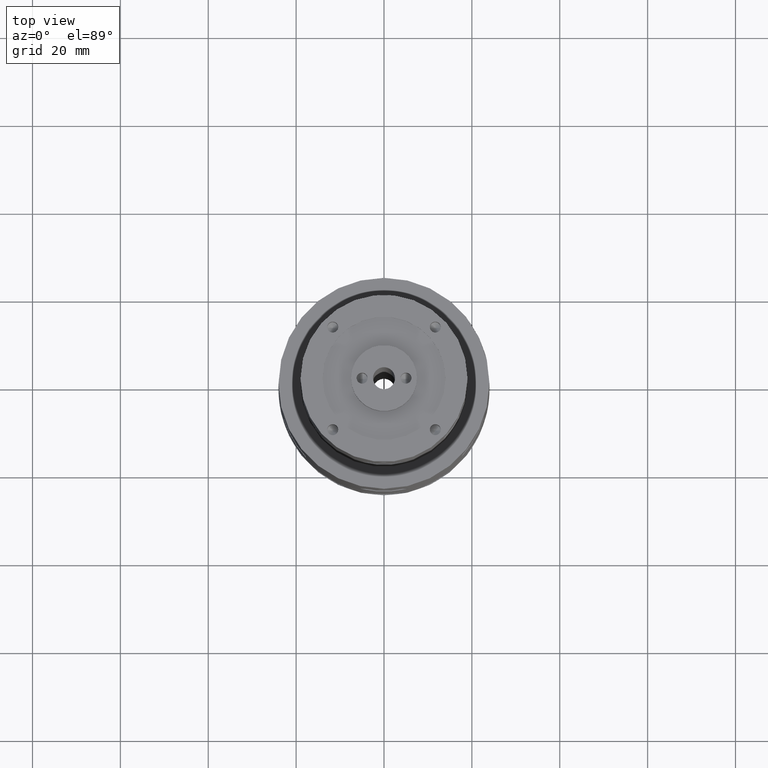
[diagram: clean part render]
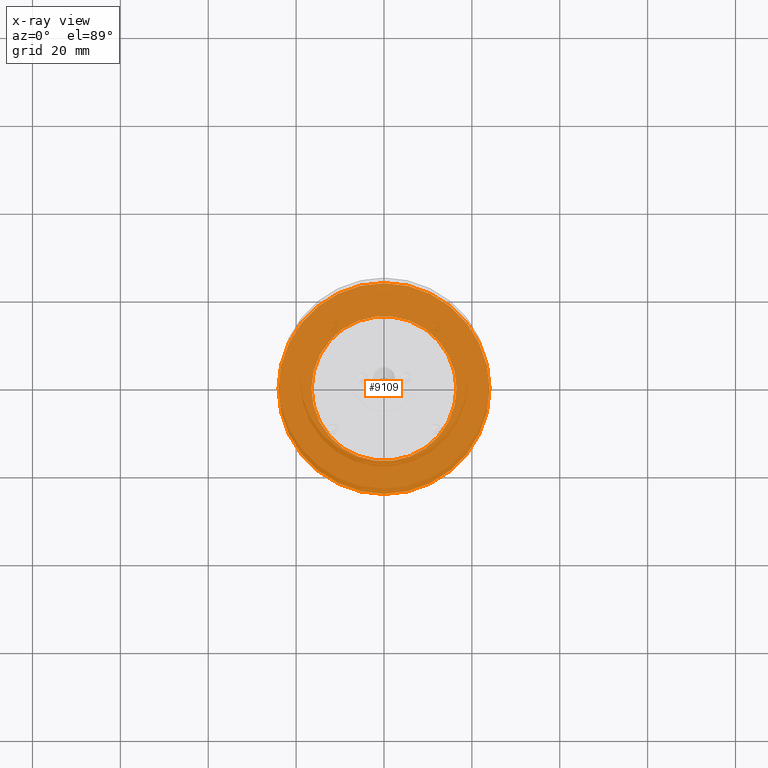
[diagram: x-ray — body ghosted, one internal face saturated and labeled with its STEP entity id]
A machine part, top view, then the same camera in x-ray: the body is ghosted and one INTERNAL B-rep face — a face not visible from any outside direction — is saturated and labeled: STEP entity #9109.
In plain terms, the highlighted planar face has unit normal (0, 0, 1).
Its self-contained STEP definition (entity closure, byte-faithful):
#31 = EDGE_CURVE ( 'NONE', #7032, #7681, #5446, .T. ) ;
#196 = EDGE_CURVE ( 'NONE', #2550, #724, #9991, .T. ) ;
#215 = DIRECTION ( 'NONE',  ( 0.0000000000000000000, 0.0000000000000000000, 1.000000000000000000 ) ) ;
#388 = CARTESIAN_POINT ( 'NONE',  ( 0.0000000000000000000, 0.0000000000000000000, 15.00000000000000200 ) ) ;
#724 = VERTEX_POINT ( 'NONE', #2127 ) ;
#872 = ORIENTED_EDGE ( 'NONE', *, *, #4247, .T. ) ;
#1021 = CARTESIAN_POINT ( 'NONE',  ( 16.50000000000000000, 2.020667218593133100E-015, 15.00000000000000200 ) ) ;
#1174 = PLANE ( 'NONE',  #1470 ) ;
#1418 = AXIS2_PLACEMENT_3D ( 'NONE', #8384, #3678, #9153 ) ;
#1470 = AXIS2_PLACEMENT_3D ( 'NONE', #388, #4290, #1957 ) ;
#1797 = DIRECTION ( 'NONE',  ( 1.000000000000000000, 0.0000000000000000000, 0.0000000000000000000 ) ) ;
#1957 = DIRECTION ( 'NONE',  ( 1.000000000000000000, 0.0000000000000000000, -0.0000000000000000000 ) ) ;
#2127 = CARTESIAN_POINT ( 'NONE',  ( 24.00000000000000400, 2.939152317953648300E-015, 15.00000000000000200 ) ) ;
#2550 = VERTEX_POINT ( 'NONE', #3426 ) ;
#2994 = CIRCLE ( 'NONE', #3688, 24.00000000000000400 ) ;
#3426 = CARTESIAN_POINT ( 'NONE',  ( -24.00000000000000400, 0.0000000000000000000, 15.00000000000000200 ) ) ;
#3437 = EDGE_LOOP ( 'NONE', ( #5949, #10095 ) ) ;
#3678 = DIRECTION ( 'NONE',  ( 0.0000000000000000000, 0.0000000000000000000, 1.000000000000000000 ) ) ;
#3688 = AXIS2_PLACEMENT_3D ( 'NONE', #4882, #215, #5678 ) ;
#4247 = EDGE_CURVE ( 'NONE', #7681, #7032, #7853, .T. ) ;
#4290 = DIRECTION ( 'NONE',  ( 0.0000000000000000000, 0.0000000000000000000, 1.000000000000000000 ) ) ;
#4449 = CARTESIAN_POINT ( 'NONE',  ( 0.0000000000000000000, 0.0000000000000000000, 15.00000000000000200 ) ) ;
#4882 = CARTESIAN_POINT ( 'NONE',  ( 0.0000000000000000000, 0.0000000000000000000, 15.00000000000000200 ) ) ;
#5225 = DIRECTION ( 'NONE',  ( 1.000000000000000000, 0.0000000000000000000, 0.0000000000000000000 ) ) ;
#5234 = FACE_OUTER_BOUND ( 'NONE', #3437, .T. ) ;
#5273 = EDGE_LOOP ( 'NONE', ( #872, #8625 ) ) ;
#5446 = CIRCLE ( 'NONE', #5806, 16.50000000000000000 ) ;
#5678 = DIRECTION ( 'NONE',  ( 1.000000000000000000, 0.0000000000000000000, 0.0000000000000000000 ) ) ;
#5806 = AXIS2_PLACEMENT_3D ( 'NONE', #8084, #7278, #1797 ) ;
#5949 = ORIENTED_EDGE ( 'NONE', *, *, #196, .F. ) ;
#7032 = VERTEX_POINT ( 'NONE', #1021 ) ;
#7060 = CARTESIAN_POINT ( 'NONE',  ( -16.50000000000000000, 0.0000000000000000000, 15.00000000000000200 ) ) ;
#7278 = DIRECTION ( 'NONE',  ( 0.0000000000000000000, 0.0000000000000000000, 1.000000000000000000 ) ) ;
#7328 = FACE_BOUND ( 'NONE', #5273, .T. ) ;
#7681 = VERTEX_POINT ( 'NONE', #7060 ) ;
#7816 = EDGE_CURVE ( 'NONE', #724, #2550, #2994, .T. ) ;
#7853 = CIRCLE ( 'NONE', #9064, 16.50000000000000000 ) ;
#8084 = CARTESIAN_POINT ( 'NONE',  ( 0.0000000000000000000, 0.0000000000000000000, 15.00000000000000200 ) ) ;
#8384 = CARTESIAN_POINT ( 'NONE',  ( 0.0000000000000000000, 0.0000000000000000000, 15.00000000000000200 ) ) ;
#8625 = ORIENTED_EDGE ( 'NONE', *, *, #31, .T. ) ;
#9064 = AXIS2_PLACEMENT_3D ( 'NONE', #4449, #9944, #5225 ) ;
#9109 = ADVANCED_FACE ( 'NONE', ( #5234, #7328 ), #1174, .F. ) ;
#9153 = DIRECTION ( 'NONE',  ( 1.000000000000000000, 0.0000000000000000000, 0.0000000000000000000 ) ) ;
#9944 = DIRECTION ( 'NONE',  ( 0.0000000000000000000, 0.0000000000000000000, 1.000000000000000000 ) ) ;
#9991 = CIRCLE ( 'NONE', #1418, 24.00000000000000400 ) ;
#10095 = ORIENTED_EDGE ( 'NONE', *, *, #7816, .F. ) ;